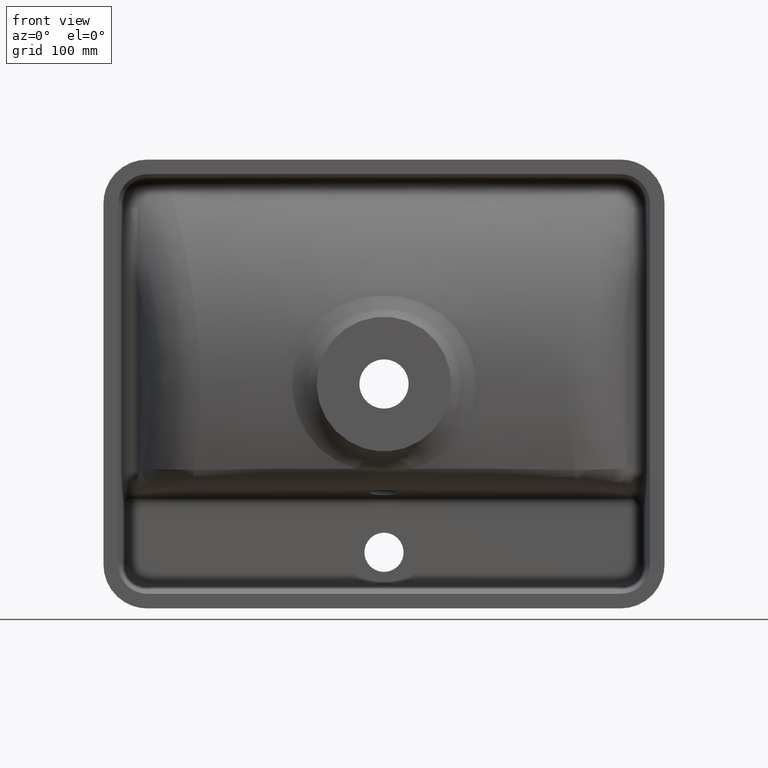
[diagram: clean part render]
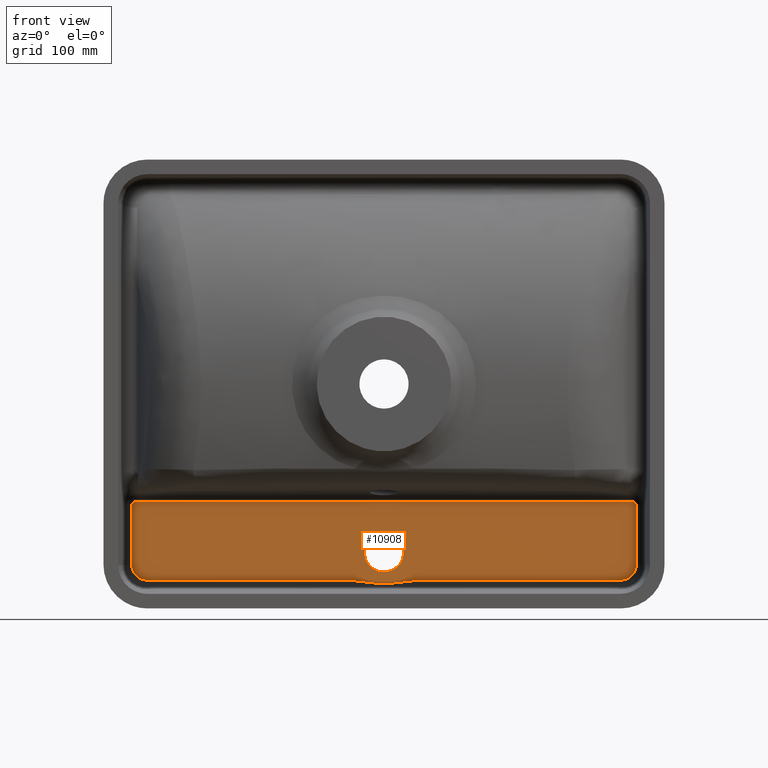
[diagram: same view with one face highlighted and labeled with its STEP entity id]
A machine part, front view. The second image highlights one B-rep face of the part: STEP entity #10908.
In plain terms, the highlighted planar face has unit normal (-0, -1, 0).
Its self-contained STEP definition (entity closure, byte-faithful):
#9 = ORIENTED_EDGE ( 'NONE', *, *, #11711, .T. ) ;
#26 = CARTESIAN_POINT ( 'NONE',  ( 0.000000000000000000, 82.00000000000001421, -132.5000000000007958 ) ) ;
#32 = CARTESIAN_POINT ( 'NONE',  ( -224.7989063272733858, 82.00000000000001421, -161.0079144214068378 ) ) ;
#64 = CARTESIAN_POINT ( 'NONE',  ( -218.3041336506827008, 81.99999999999998579, -172.7208359035058436 ) ) ;
#131 = CARTESIAN_POINT ( 'NONE',  ( 0.000000000000000000, 82.00000000000001421, 0.000000000000000000 ) ) ;
#211 = CARTESIAN_POINT ( 'NONE',  ( 0.000000000000000000, 82.00000000000001421, -150.0000000000007958 ) ) ;
#456 = CARTESIAN_POINT ( 'NONE',  ( 222.9557113638132648, 81.99999999999997158, -167.9128363245833668 ) ) ;
#609 = CARTESIAN_POINT ( 'NONE',  ( -9.555009154688187678, 82.00000000000000000, -176.9553339786715469 ) ) ;
#755 = VERTEX_POINT ( 'NONE', #5980 ) ;
#766 = CARTESIAN_POINT ( 'NONE',  ( 211.0079144214180928, 82.00000000000001421, -174.7989063272736132 ) ) ;
#776 = CARTESIAN_POINT ( 'NONE',  ( 22.26515533665001101, 82.00000000000000000, -175.6850273357141532 ) ) ;
#859 = CARTESIAN_POINT ( 'NONE',  ( 9.558598856104804753, 82.00000000000000000, -176.9548971315384165 ) ) ;
#992 = EDGE_CURVE ( 'NONE', #6961, #12272, #2385, .T. ) ;
#1110 = LINE ( 'NONE', #11060, #12472 ) ;
#1115 = CARTESIAN_POINT ( 'NONE',  ( -224.7086429677673607, 82.00000000000000000, -162.8143911168195643 ) ) ;
#1196 = CARTESIAN_POINT ( 'NONE',  ( -224.7989063272733858, 82.00000000000001421, -161.0079144214179223 ) ) ;
#1252 = CARTESIAN_POINT ( 'NONE',  ( -3.550754748833789949E-13, 82.00000000000001421, -105.1037933611911228 ) ) ;
#1334 = FACE_BOUND ( 'NONE', #4506, .T. ) ;
#1643 = B_SPLINE_CURVE_WITH_KNOTS ( 'NONE', 3,
 ( #1196, #2326, #1115, #11064, #9937, #9853, #5086, #14861, #14697, #3780, #7354, #8553, #15907, #8721, #2490, #64, #6146, #13483, #3702, #13401, #8638, #7432, #12183, #2862, #7275, #14619 ),
 .UNSPECIFIED., .F., .F.,
 ( 4, 2, 2, 2, 2, 2, 2, 2, 2, 2, 2, 2, 4 ),
 ( 0.000000000000000000, 0.002694067692040237258, 0.004041101538060355887, 0.005388135384080474516, 0.008082203076120711774, 0.009429236922140865965, 0.01077627076816101842, 0.01347033846020132333, 0.01481737230622142028, 0.01616440615224151375, 0.01751143999826160896, 0.01885847384428170417, 0.02155254153632191194 ),
 .UNSPECIFIED. ) ;
#1647 = VECTOR ( 'NONE', #6189, 1000.000000000000000 ) ;
#1673 = CARTESIAN_POINT ( 'NONE',  ( -15.90515382798038679, 82.00000000000002842, -176.2810323478992132 ) ) ;
#1900 = CARTESIAN_POINT ( 'NONE',  ( -223.5757988573642763, 82.00000000000002842, -105.1037933611903696 ) ) ;
#1903 = CARTESIAN_POINT ( 'NONE',  ( -30.73184602148318234, 82.00000000000001421, -174.7989063272727321 ) ) ;
#2116 = VECTOR ( 'NONE', #4971, 1000.000000000000000 ) ;
#2200 = DIRECTION ( 'NONE',  ( 0.000000000000000000, -1.000000000000000000, -0.000000000000000000 ) ) ;
#2326 = CARTESIAN_POINT ( 'NONE',  ( -224.7989063272335954, 82.00000000000000000, -161.9188269391720496 ) ) ;
#2385 = LINE ( 'NONE', #1252, #5510 ) ;
#2387 = FACE_OUTER_BOUND ( 'NONE', #13708, .T. ) ;
#2490 = CARTESIAN_POINT ( 'NONE',  ( -219.4338281243409483, 81.99999999999998579, -171.9649472084092849 ) ) ;
#2509 = EDGE_CURVE ( 'NONE', #7672, #7574, #11111, .T. ) ;
#2566 = CARTESIAN_POINT ( 'NONE',  ( 224.7989063272723342, 82.00000000000001421, -108.9087648286306660 ) ) ;
#2793 = ORIENTED_EDGE ( 'NONE', *, *, #992, .T. ) ;
#2862 = CARTESIAN_POINT ( 'NONE',  ( -212.8188836345235302, 82.00000000000008527, -174.7086912380439401 ) ) ;
#2889 = CIRCLE ( 'NONE', #11923, 17.50000000000001421 ) ;
#2949 = CARTESIAN_POINT ( 'NONE',  ( 0.000000000000000000, 82.00000000000001421, -178.1020708665710401 ) ) ;
#3035 = ORIENTED_EDGE ( 'NONE', *, *, #9395, .T. ) ;
#3043 = CARTESIAN_POINT ( 'NONE',  ( -7.445286214740105102, 82.00000000000002842, -177.2333230850486530 ) ) ;
#3107 = VERTEX_POINT ( 'NONE', #3635 ) ;
#3147 = EDGE_CURVE ( 'NONE', #5332, #9279, #2889, .T. ) ;
#3315 =( BOUNDED_CURVE ( )  B_SPLINE_CURVE ( 3, ( #11767, #1900, #15245, #11530 ),
 .UNSPECIFIED., .F., .T. ) 
 B_SPLINE_CURVE_WITH_KNOTS ( ( 4, 4 ),
 ( 2.688535443140260828, 4.244196756214265065 ),
 .UNSPECIFIED. ) 
 CURVE ( )  GEOMETRIC_REPRESENTATION_ITEM ( )  RATIONAL_B_SPLINE_CURVE ( ( 1.000000000000000000, 0.8082916790861982559, 0.8082916790861982559, 1.000000000000000000 ) ) 
 REPRESENTATION_ITEM ( '' )  );
#3367 = CARTESIAN_POINT ( 'NONE',  ( 223.1464395642267107, 82.00000000000001421, -105.4111230439769002 ) ) ;
#3524 = DIRECTION ( 'NONE',  ( -0.000000000000000000, -1.000000000000000000, 0.000000000000000000 ) ) ;
#3635 = CARTESIAN_POINT ( 'NONE',  ( -5.346229173279655633, 82.00000000000001421, -177.5888423210643907 ) ) ;
#3702 = CARTESIAN_POINT ( 'NONE',  ( -216.7114449836851975, 82.00000000000004263, -173.5740704754641683 ) ) ;
#3761 = EDGE_CURVE ( 'NONE', #755, #6961, #14556, .T. ) ;
#3780 = CARTESIAN_POINT ( 'NONE',  ( -222.2304582614623882, 81.99999999999998579, -169.0381950538461524 ) ) ;
#3823 = CARTESIAN_POINT ( 'NONE',  ( 211.0079144214069800, 82.00000000000001421, -174.7989063272736132 ) ) ;
#4172 = CARTESIAN_POINT ( 'NONE',  ( 224.4422374084348064, 81.99999999999998579, -164.1548721202210004 ) ) ;
#4252 = CARTESIAN_POINT ( 'NONE',  ( 217.1225753431418468, 82.00000000000000000, -173.4042590221912690 ) ) ;
#4289 = CARTESIAN_POINT ( 'NONE',  ( -221.8330235556065588, 82.00000000000001421, -105.1037933611903696 ) ) ;
#4334 = CARTESIAN_POINT ( 'NONE',  ( -13.78625706289231445, 82.00000000000001421, -176.4851443927057346 ) ) ;
#4413 = CARTESIAN_POINT ( 'NONE',  ( 221.3951145547987664, 81.99999999999995737, -170.1282685016903713 ) ) ;
#4497 = CARTESIAN_POINT ( 'NONE',  ( 223.3815972394919811, 81.99999999999997158, -167.1175254057735060 ) ) ;
#4506 = EDGE_LOOP ( 'NONE', ( #11679, #13384 ) ) ;
#4971 = DIRECTION ( 'NONE',  ( -3.630259216921277923E-15, -0.000000000000000000, -1.000000000000000000 ) ) ;
#5009 = ORIENTED_EDGE ( 'NONE', *, *, #11602, .T. ) ;
#5086 = CARTESIAN_POINT ( 'NONE',  ( -223.9226141908544321, 82.00000000000001421, -165.8702519222142655 ) ) ;
#5320 = CARTESIAN_POINT ( 'NONE',  ( -30.73184602148318234, 82.00000000000001421, -174.7989063272727321 ) ) ;
#5332 = VERTEX_POINT ( 'NONE', #7117 ) ;
#5392 = CARTESIAN_POINT ( 'NONE',  ( 223.5740704756574928, 82.00000000000005684, -166.7114449833072456 ) ) ;
#5436 = CARTESIAN_POINT ( 'NONE',  ( 211.0079144214180928, 82.00000000000001421, -174.7989063272736132 ) ) ;
#5470 = CARTESIAN_POINT ( 'NONE',  ( -10.61212338298076396, 82.00000000000002842, -176.8327146651952546 ) ) ;
#5510 = VECTOR ( 'NONE', #9754, 1000.000000000000000 ) ;
#5559 = CARTESIAN_POINT ( 'NONE',  ( 220.4412504592545758, 81.99999999999998579, -171.0816682385110141 ) ) ;
#5640 = CARTESIAN_POINT ( 'NONE',  ( 214.1361729523871702, 81.99999999999997158, -174.4464278312826480 ) ) ;
#5720 = CARTESIAN_POINT ( 'NONE',  ( 214.5731340959559361, 82.00000000000004263, -174.3376583336971066 ) ) ;
#5812 = CARTESIAN_POINT ( 'NONE',  ( 20.14555837953506767, 82.00000000000000000, -175.8799508091270525 ) ) ;
#5865 = EDGE_CURVE ( 'NONE', #6370, #7416, #1110, .T. ) ;
#5889 = CARTESIAN_POINT ( 'NONE',  ( 7.448132900384114130, 81.99999999999998579, -177.2329119472840091 ) ) ;
#5899 = DIRECTION ( 'NONE',  ( 1.000000000000000000, -0.000000000000000000, -3.602503641305649009E-15 ) ) ;
#5980 = CARTESIAN_POINT ( 'NONE',  ( 223.1464395642267107, 82.00000000000001421, -105.4111230439769002 ) ) ;
#6058 = AXIS2_PLACEMENT_3D ( 'NONE', #131, #3524, #10965 ) ;
#6069 = ORIENTED_EDGE ( 'NONE', *, *, #5865, .T. ) ;
#6146 = CARTESIAN_POINT ( 'NONE',  ( -217.9128363249079428, 82.00000000000002842, -172.9557113635800363 ) ) ;
#6189 = DIRECTION ( 'NONE',  ( 1.000000000000000000, -0.000000000000000000, -3.602503641305649009E-15 ) ) ;
#6249 = VERTEX_POINT ( 'NONE', #7658 ) ;
#6345 = EDGE_CURVE ( 'NONE', #7416, #3107, #8602, .T. ) ;
#6370 = VERTEX_POINT ( 'NONE', #11843 ) ;
#6494 = EDGE_CURVE ( 'NONE', #8401, #6249, #15729, .T. ) ;
#6509 = LINE ( 'NONE', #3823, #1647 ) ;
#6698 = CARTESIAN_POINT ( 'NONE',  ( 224.7086912380371473, 81.99999999999998579, -162.8188836339808176 ) ) ;
#6741 = CARTESIAN_POINT ( 'NONE',  ( 221.8330235556056778, 82.00000000000001421, -105.1037933611918760 ) ) ;
#6858 = CARTESIAN_POINT ( 'NONE',  ( 211.9188269391971176, 82.00000000000004263, -174.7989063272338228 ) ) ;
#6935 = CARTESIAN_POINT ( 'NONE',  ( -26.50075747073123367, 82.00000000000000000, -175.2729768572332034 ) ) ;
#6961 = VERTEX_POINT ( 'NONE', #6741 ) ;
#6999 = DIRECTION ( 'NONE',  ( 0.000000000000000000, -1.000000000000000000, -0.000000000000000000 ) ) ;
#7100 = CARTESIAN_POINT ( 'NONE',  ( 10.61563674948101976, 82.00000000000002842, -176.8323143025847628 ) ) ;
#7117 = CARTESIAN_POINT ( 'NONE',  ( 2.143131898507868248E-15, 82.00000000000001421, -167.5000000000008242 ) ) ;
#7275 = CARTESIAN_POINT ( 'NONE',  ( -211.9184450968417934, 82.00000000000004263, -174.7989063272725332 ) ) ;
#7332 = CARTESIAN_POINT ( 'NONE',  ( -224.7989063272733858, 82.00000000000001421, -161.0079144214179223 ) ) ;
#7354 = CARTESIAN_POINT ( 'NONE',  ( -221.9603856961564361, 82.00000000000004263, -169.4035196842384323 ) ) ;
#7416 = VERTEX_POINT ( 'NONE', #5320 ) ;
#7432 = CARTESIAN_POINT ( 'NONE',  ( -214.5966206783941459, 81.99999999999998579, -174.3313203735207253 ) ) ;
#7495 = DIRECTION ( 'NONE',  ( 0.000000000000000000, 0.000000000000000000, -1.000000000000000000 ) ) ;
#7574 = VERTEX_POINT ( 'NONE', #7332 ) ;
#7658 = CARTESIAN_POINT ( 'NONE',  ( 224.7989063272721637, 82.00000000000001421, -161.0079144212017752 ) ) ;
#7672 = VERTEX_POINT ( 'NONE', #8215 ) ;
#7714 = EDGE_CURVE ( 'NONE', #14111, #9599, #9129, .T. ) ;
#7760 =( BOUNDED_CURVE ( )  B_SPLINE_CURVE ( 3, ( #12989, #13226, #8379, #3367 ),
 .UNSPECIFIED., .F., .T. ) 
 B_SPLINE_CURVE_WITH_KNOTS ( ( 4, 4 ),
 ( 5.180581204555117836, 6.283185307179586232 ),
 .UNSPECIFIED. ) 
 CURVE ( )  GEOMETRIC_REPRESENTATION_ITEM ( )  RATIONAL_B_SPLINE_CURVE ( ( 1.000000000000000000, 0.9012288226674277647, 0.9012288226674277647, 1.000000000000000000 ) ) 
 REPRESENTATION_ITEM ( '' )  );
#7795 = LINE ( 'NONE', #2566, #9137 ) ;
#8016 = CARTESIAN_POINT ( 'NONE',  ( 5.346229173279266611, 82.00000000000001421, -177.5888423210644760 ) ) ;
#8050 = CARTESIAN_POINT ( 'NONE',  ( 219.0381950540386811, 82.00000000000000000, -172.2304582613255661 ) ) ;
#8215 = CARTESIAN_POINT ( 'NONE',  ( -224.7989063272732153, 82.00000000000001421, -108.1039694699372973 ) ) ;
#8349 = AXIS2_PLACEMENT_3D ( 'NONE', #12085, #10718, #13462 ) ;
#8379 = CARTESIAN_POINT ( 'NONE',  ( 224.1877160940103124, 82.00000000000001421, -105.9277762049716074 ) ) ;
#8401 = VERTEX_POINT ( 'NONE', #5436 ) ;
#8481 = CARTESIAN_POINT ( 'NONE',  ( 224.7989063272723342, 82.00000000000001421, -108.1039694699388178 ) ) ;
#8553 = CARTESIAN_POINT ( 'NONE',  ( -221.3846090289002575, 82.00000000000004263, -170.1066092689642346 ) ) ;
#8602 = B_SPLINE_CURVE_WITH_KNOTS ( 'NONE', 3,
 ( #1903, #14279, #6935, #15410, #15329, #1673, #4334, #5470, #609, #3043, #10640, #14198 ),
 .UNSPECIFIED., .F., .F.,
 ( 4, 2, 2, 2, 2, 4 ),
 ( -2.259858498774969764E-05, 0.006363366798312103563, 0.01274933218161195675, 0.01913529756491180733, 0.02232828025656172916, 0.02552126294821165098 ),
 .UNSPECIFIED. ) ;
#8638 = CARTESIAN_POINT ( 'NONE',  ( -215.4593973818803363, 81.99999999999995737, -174.0693526629275141 ) ) ;
#8721 = CARTESIAN_POINT ( 'NONE',  ( -220.1282685019310179, 81.99999999999998579, -171.3951145545856889 ) ) ;
#8744 = EDGE_CURVE ( 'NONE', #7574, #6370, #1643, .T. ) ;
#8852 = EDGE_CURVE ( 'NONE', #6249, #15024, #7795, .T. ) ;
#9110 = CARTESIAN_POINT ( 'NONE',  ( 224.7989063272325154, 82.00000000000002842, -161.9184450962727055 ) ) ;
#9129 = CIRCLE ( 'NONE', #8349, 28.10207086657023723 ) ;
#9137 = VECTOR ( 'NONE', #12346, 1000.000000000000000 ) ;
#9270 = CARTESIAN_POINT ( 'NONE',  ( 215.8702519223432148, 81.99999999999997158, -173.9226141908065699 ) ) ;
#9279 = VERTEX_POINT ( 'NONE', #26 ) ;
#9353 = CARTESIAN_POINT ( 'NONE',  ( 222.7208359037431364, 82.00000000000001421, -168.3041336503734442 ) ) ;
#9395 = EDGE_CURVE ( 'NONE', #14682, #8401, #6509, .T. ) ;
#9520 = CARTESIAN_POINT ( 'NONE',  ( 15.90757349580808722, 82.00000000000001421, -176.2807998315272471 ) ) ;
#9599 = VERTEX_POINT ( 'NONE', #8016 ) ;
#9754 = DIRECTION ( 'NONE',  ( -1.000000000000000000, -0.000000000000000000, 3.378331680790584079E-15 ) ) ;
#9777 = ORIENTED_EDGE ( 'NONE', *, *, #6345, .T. ) ;
#9853 = CARTESIAN_POINT ( 'NONE',  ( -224.0761258202807937, 82.00000000000008527, -165.4395757453673923 ) ) ;
#9937 = CARTESIAN_POINT ( 'NONE',  ( -224.3376583337220609, 82.00000000000004263, -164.5731340958598423 ) ) ;
#10254 = ORIENTED_EDGE ( 'NONE', *, *, #7714, .T. ) ;
#10316 = CARTESIAN_POINT ( 'NONE',  ( 224.0693526630432189, 81.99999999999998579, -165.4593973814370429 ) ) ;
#10482 = CARTESIAN_POINT ( 'NONE',  ( 221.9649472086399840, 82.00000000000001421, -169.4338281240806907 ) ) ;
#10484 = CARTESIAN_POINT ( 'NONE',  ( 223.1464395642267107, 82.00000000000001421, -105.4111230439769002 ) ) ;
#10563 = CARTESIAN_POINT ( 'NONE',  ( 219.4035196844388906, 81.99999999999998579, -171.9603856960037547 ) ) ;
#10640 = CARTESIAN_POINT ( 'NONE',  ( -6.392324588460892798, 82.00000000000002842, -177.3861275510283519 ) ) ;
#10718 = DIRECTION ( 'NONE',  ( 0.000000000000000000, -1.000000000000000000, -0.000000000000000000 ) ) ;
#10804 = CARTESIAN_POINT ( 'NONE',  ( 28.61942050264842052, 82.00000000000001421, -175.0575914079361155 ) ) ;
#10908 = ADVANCED_FACE ( 'NONE', ( #2387, #1334 ), #12165, .T. ) ;
#10965 = DIRECTION ( 'NONE',  ( -1.000000000000000000, 0.000000000000000000, 3.491481338843133355E-15 ) ) ;
#11008 = ORIENTED_EDGE ( 'NONE', *, *, #12735, .T. ) ;
#11060 = CARTESIAN_POINT ( 'NONE',  ( 211.0079144214069800, 82.00000000000001421, -174.7989063272736132 ) ) ;
#11064 = CARTESIAN_POINT ( 'NONE',  ( -224.4464278313017189, 81.99999999999998579, -164.1361729523024167 ) ) ;
#11090 = DIRECTION ( 'NONE',  ( 0.000000000000000000, 0.000000000000000000, -1.000000000000000000 ) ) ;
#11111 = LINE ( 'NONE', #32, #2116 ) ;
#11237 = ORIENTED_EDGE ( 'NONE', *, *, #11544, .T. ) ;
#11467 = CIRCLE ( 'NONE', #11978, 28.10207086657023723 ) ;
#11530 = CARTESIAN_POINT ( 'NONE',  ( -224.7989063272732153, 82.00000000000001421, -108.1039694699372973 ) ) ;
#11533 = CARTESIAN_POINT ( 'NONE',  ( 217.9140147682701070, 81.99999999999998579, -172.9802333457230077 ) ) ;
#11544 = EDGE_CURVE ( 'NONE', #15024, #755, #7760, .T. ) ;
#11602 = EDGE_CURVE ( 'NONE', #9599, #14682, #13568, .T. ) ;
#11679 = ORIENTED_EDGE ( 'NONE', *, *, #14761, .F. ) ;
#11686 = CARTESIAN_POINT ( 'NONE',  ( 212.8143911168690749, 81.99999999999995737, -174.7086429677625858 ) ) ;
#11711 = EDGE_CURVE ( 'NONE', #3107, #14111, #11467, .T. ) ;
#11767 = CARTESIAN_POINT ( 'NONE',  ( -221.8330235556065588, 82.00000000000001421, -105.1037933611903696 ) ) ;
#11843 = CARTESIAN_POINT ( 'NONE',  ( -211.0079144217888256, 82.00000000000001421, -174.7989063272720500 ) ) ;
#11853 = CARTESIAN_POINT ( 'NONE',  ( 13.78898248387382530, 82.00000000000002842, -176.4848773212158335 ) ) ;
#11923 = AXIS2_PLACEMENT_3D ( 'NONE', #13205, #6999, #14348 ) ;
#11933 = CARTESIAN_POINT ( 'NONE',  ( 5.346229173279266611, 82.00000000000001421, -177.5888423210644760 ) ) ;
#11978 = AXIS2_PLACEMENT_3D ( 'NONE', #211, #13709, #7495 ) ;
#12011 = CARTESIAN_POINT ( 'NONE',  ( 30.73184602148299049, 82.00000000000001421, -174.7989063272729595 ) ) ;
#12085 = CARTESIAN_POINT ( 'NONE',  ( 0.000000000000000000, 82.00000000000001421, -150.0000000000007958 ) ) ;
#12093 = CARTESIAN_POINT ( 'NONE',  ( 26.50189651563998794, 82.00000000000001421, -175.2728607051348888 ) ) ;
#12130 = CARTESIAN_POINT ( 'NONE',  ( 30.73184602148299049, 82.00000000000001421, -174.7989063272729595 ) ) ;
#12165 = PLANE ( 'NONE',  #6058 ) ;
#12183 = CARTESIAN_POINT ( 'NONE',  ( -214.1548721207231836, 82.00000000000005684, -174.4422374083854947 ) ) ;
#12272 = VERTEX_POINT ( 'NONE', #4289 ) ;
#12346 = DIRECTION ( 'NONE',  ( 3.630259216921277923E-15, 0.000000000000000000, 1.000000000000000000 ) ) ;
#12472 = VECTOR ( 'NONE', #5899, 1000.000000000000000 ) ;
#12735 = EDGE_CURVE ( 'NONE', #12272, #7672, #3315, .T. ) ;
#12976 = CARTESIAN_POINT ( 'NONE',  ( 220.1066092691704625, 81.99999999999998579, -171.3846090287203765 ) ) ;
#12979 = CARTESIAN_POINT ( 'NONE',  ( 222.7370834346512254, 82.00000000000001421, -105.2080116395916463 ) ) ;
#12983 = ORIENTED_EDGE ( 'NONE', *, *, #2509, .T. ) ;
#12989 = CARTESIAN_POINT ( 'NONE',  ( 224.7989063272723342, 82.00000000000001421, -108.1039694699388178 ) ) ;
#13069 = CARTESIAN_POINT ( 'NONE',  ( 6.394416725246015787, 81.99999999999998579, -177.3857221319612449 ) ) ;
#13205 = CARTESIAN_POINT ( 'NONE',  ( 0.000000000000000000, 82.00000000000001421, -150.0000000000007958 ) ) ;
#13226 = CARTESIAN_POINT ( 'NONE',  ( 224.7989063272723058, 82.00000000000001421, -106.9237668487948980 ) ) ;
#13268 = CARTESIAN_POINT ( 'NONE',  ( 0.000000000000000000, 82.00000000000001421, -150.0000000000007958 ) ) ;
#13384 = ORIENTED_EDGE ( 'NONE', *, *, #3147, .F. ) ;
#13401 = CARTESIAN_POINT ( 'NONE',  ( -215.8823806685767863, 82.00000000000000000, -173.9179474511462899 ) ) ;
#13462 = DIRECTION ( 'NONE',  ( 0.000000000000000000, 0.000000000000000000, -1.000000000000000000 ) ) ;
#13483 = CARTESIAN_POINT ( 'NONE',  ( -217.1175254061321880, 82.00000000000002842, -173.3815972392807794 ) ) ;
#13568 = B_SPLINE_CURVE_WITH_KNOTS ( 'NONE', 3,
 ( #11933, #13069, #5889, #859, #7100, #11853, #9520, #5812, #776, #12093, #10804, #12011 ),
 .UNSPECIFIED., .F., .F.,
 ( 4, 2, 2, 2, 2, 4 ),
 ( 4.336808689942017736E-18, 0.003192308564825586947, 0.006384617129651169558, 0.01276923425930233044, 0.01915385138895348699, 0.02553846851860464701 ),
 .UNSPECIFIED. ) ;
#13631 = ORIENTED_EDGE ( 'NONE', *, *, #8744, .T. ) ;
#13708 = EDGE_LOOP ( 'NONE', ( #6069, #9777, #9, #10254, #5009, #3035, #14207, #15813, #11237, #14124, #2793, #11008, #12983, #13631 ) ) ;
#13709 = DIRECTION ( 'NONE',  ( 0.000000000000000000, -1.000000000000000000, -0.000000000000000000 ) ) ;
#13810 = CIRCLE ( 'NONE', #15100, 17.50000000000001421 ) ;
#14042 = CARTESIAN_POINT ( 'NONE',  ( 224.7989063272721637, 82.00000000000001421, -161.0079144212017752 ) ) ;
#14111 = VERTEX_POINT ( 'NONE', #2949 ) ;
#14119 = CARTESIAN_POINT ( 'NONE',  ( 223.9179474512863237, 82.00000000000004263, -165.8823806681541271 ) ) ;
#14124 = ORIENTED_EDGE ( 'NONE', *, *, #3761, .T. ) ;
#14198 = CARTESIAN_POINT ( 'NONE',  ( -5.346229173279655633, 82.00000000000001421, -177.5888423210643907 ) ) ;
#14207 = ORIENTED_EDGE ( 'NONE', *, *, #6494, .T. ) ;
#14279 = CARTESIAN_POINT ( 'NONE',  ( -28.61897441711098367, 82.00000000000001421, -175.0576460350959280 ) ) ;
#14281 = CARTESIAN_POINT ( 'NONE',  ( 221.8330235556056778, 82.00000000000001421, -105.1037933611918760 ) ) ;
#14348 = DIRECTION ( 'NONE',  ( 0.000000000000000000, 0.000000000000000000, -1.000000000000000000 ) ) ;
#14556 =( BOUNDED_CURVE ( )  B_SPLINE_CURVE ( 3, ( #10484, #12979, #15412, #14281 ),
 .UNSPECIFIED., .F., .T. ) 
 B_SPLINE_CURVE_WITH_KNOTS ( ( 4, 4 ),
 ( 1.734723475976812616E-15, 0.4530572104495304009 ),
 .UNSPECIFIED. ) 
 CURVE ( )  GEOMETRIC_REPRESENTATION_ITEM ( )  RATIONAL_B_SPLINE_CURVE ( ( 1.000000000000000000, 0.9829679511884352738, 0.9829679511884352738, 1.000000000000000000 ) ) 
 REPRESENTATION_ITEM ( '' )  );
#14619 = CARTESIAN_POINT ( 'NONE',  ( -211.0079144217888256, 82.00000000000001421, -174.7989063272720500 ) ) ;
#14682 = VERTEX_POINT ( 'NONE', #12130 ) ;
#14697 = CARTESIAN_POINT ( 'NONE',  ( -222.9802333458200678, 81.99999999999998579, -167.9140147680982693 ) ) ;
#14761 = EDGE_CURVE ( 'NONE', #9279, #5332, #13810, .T. ) ;
#14861 = CARTESIAN_POINT ( 'NONE',  ( -223.4042590222663591, 81.99999999999997158, -167.1225753429860106 ) ) ;
#15024 = VERTEX_POINT ( 'NONE', #8481 ) ;
#15100 = AXIS2_PLACEMENT_3D ( 'NONE', #13268, #2200, #11090 ) ;
#15245 = CARTESIAN_POINT ( 'NONE',  ( -224.7989063272732153, 82.00000000000002842, -106.3410431421682603 ) ) ;
#15248 = CARTESIAN_POINT ( 'NONE',  ( 224.3313203735913532, 81.99999999999998579, -164.5966206779115737 ) ) ;
#15329 = CARTESIAN_POINT ( 'NONE',  ( -20.14362960779820355, 82.00000000000001421, -175.8801295928578554 ) ) ;
#15410 = CARTESIAN_POINT ( 'NONE',  ( -22.26342321596473894, 82.00000000000001421, -175.6851904981306802 ) ) ;
#15412 = CARTESIAN_POINT ( 'NONE',  ( 222.2916921727309614, 82.00000000000001421, -105.1037933611918760 ) ) ;
#15570 = CARTESIAN_POINT ( 'NONE',  ( 215.4395757454860245, 82.00000000000004263, -174.0761258202412307 ) ) ;
#15729 = B_SPLINE_CURVE_WITH_KNOTS ( 'NONE', 3,
 ( #766, #6858, #11686, #5640, #5720, #15570, #9270, #4252, #11533, #8050, #10563, #12976, #5559, #4413, #10482, #9353, #456, #4497, #5392, #14119, #10316, #15248, #4172, #6698, #9110, #14042 ),
 .UNSPECIFIED., .F., .F.,
 ( 4, 2, 2, 2, 2, 2, 2, 2, 2, 2, 2, 2, 4 ),
 ( 0.000000000000000000, 0.002694067692114443958, 0.004041101538171673960, 0.005388135384228904395, 0.008082203076343332307, 0.009429236922400545395, 0.01077627076845776022, 0.01347033846057218813, 0.01481737230662940295, 0.01616440615268661951, 0.01751143999874383086, 0.01885847384480104569, 0.02155254153691555513 ),
 .UNSPECIFIED. ) ;
#15813 = ORIENTED_EDGE ( 'NONE', *, *, #8852, .T. ) ;
#15907 = CARTESIAN_POINT ( 'NONE',  ( -221.0816682387051060, 82.00000000000001421, -170.4412504590461310 ) ) ;